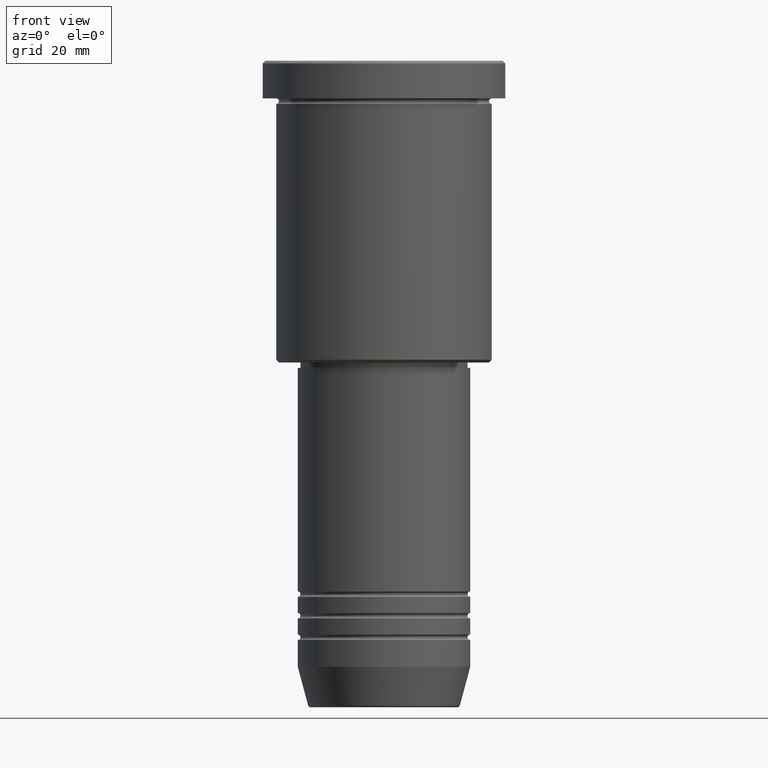
[diagram: clean part render]
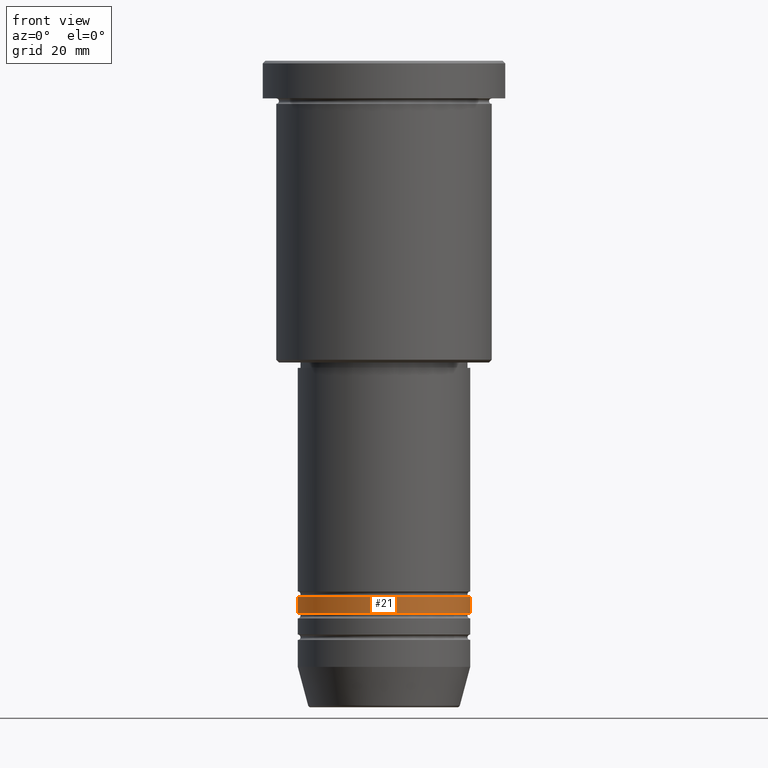
[diagram: same view with one face highlighted and labeled with its STEP entity id]
A machine part, front view. The second image highlights one B-rep face of the part: STEP entity #21.
In plain terms, the highlighted cylindrical surface (partial cylindrical patch) has radius 16 mm, axis along (-0, -0, 1).
Its self-contained STEP definition (entity closure, byte-faithful):
#18 = CIRCLE ( 'NONE', #134, 16.00000000000000355 ) ;
#21 = ADVANCED_FACE ( 'NONE', ( #814 ), #787, .T. ) ;
#24 = DIRECTION ( 'NONE',  ( 1.000000000000000000, 0.000000000000000000, 0.000000000000000000 ) ) ;
#28 = DIRECTION ( 'NONE',  ( 1.000000000000000000, 0.000000000000000000, 0.000000000000000000 ) ) ;
#36 = CARTESIAN_POINT ( 'NONE',  ( -16.00000000000000355, 1.959434878635765526E-15, -102.4999999999999858 ) ) ;
#73 = LINE ( 'NONE', #703, #522 ) ;
#99 = VERTEX_POINT ( 'NONE', #541 ) ;
#134 = AXIS2_PLACEMENT_3D ( 'NONE', #648, #748, #28 ) ;
#208 = VECTOR ( 'NONE', #306, 1000.000000000000000 ) ;
#280 = VERTEX_POINT ( 'NONE', #36 ) ;
#306 = DIRECTION ( 'NONE',  ( -0.000000000000000000, -0.000000000000000000, 1.000000000000000000 ) ) ;
#321 = CARTESIAN_POINT ( 'NONE',  ( 16.00000000000000355, 0.000000000000000000, -102.4999999999999858 ) ) ;
#344 = VERTEX_POINT ( 'NONE', #1130 ) ;
#356 = CARTESIAN_POINT ( 'NONE',  ( 0.000000000000000000, 0.000000000000000000, 0.000000000000000000 ) ) ;
#415 = EDGE_CURVE ( 'NONE', #280, #99, #853, .T. ) ;
#458 = AXIS2_PLACEMENT_3D ( 'NONE', #356, #974, #1080 ) ;
#468 = EDGE_CURVE ( 'NONE', #99, #344, #1181, .T. ) ;
#480 = DIRECTION ( 'NONE',  ( -0.000000000000000000, -0.000000000000000000, 1.000000000000000000 ) ) ;
#518 = VERTEX_POINT ( 'NONE', #321 ) ;
#522 = VECTOR ( 'NONE', #1070, 1000.000000000000000 ) ;
#541 = CARTESIAN_POINT ( 'NONE',  ( -16.00000000000000000, 1.959434878635765131E-15, -99.49999999999997158 ) ) ;
#618 = EDGE_LOOP ( 'NONE', ( #1007, #1139, #1157, #772 ) ) ;
#648 = CARTESIAN_POINT ( 'NONE',  ( 0.000000000000000000, 0.000000000000000000, -102.4999999999999858 ) ) ;
#663 = CARTESIAN_POINT ( 'NONE',  ( -16.00000000000000000, 1.959434878635765131E-15, 0.000000000000000000 ) ) ;
#703 = CARTESIAN_POINT ( 'NONE',  ( 16.00000000000000000, 0.000000000000000000, 0.000000000000000000 ) ) ;
#748 = DIRECTION ( 'NONE',  ( -0.000000000000000000, -0.000000000000000000, 1.000000000000000000 ) ) ;
#772 = ORIENTED_EDGE ( 'NONE', *, *, #468, .F. ) ;
#787 = CYLINDRICAL_SURFACE ( 'NONE', #458, 16.00000000000000000 ) ;
#814 = FACE_OUTER_BOUND ( 'NONE', #618, .T. ) ;
#853 = LINE ( 'NONE', #663, #208 ) ;
#866 = AXIS2_PLACEMENT_3D ( 'NONE', #931, #480, #24 ) ;
#927 = EDGE_CURVE ( 'NONE', #280, #518, #18, .T. ) ;
#931 = CARTESIAN_POINT ( 'NONE',  ( 0.000000000000000000, 0.000000000000000000, -99.49999999999997158 ) ) ;
#974 = DIRECTION ( 'NONE',  ( -0.000000000000000000, -0.000000000000000000, 1.000000000000000000 ) ) ;
#1007 = ORIENTED_EDGE ( 'NONE', *, *, #415, .F. ) ;
#1070 = DIRECTION ( 'NONE',  ( -0.000000000000000000, -0.000000000000000000, 1.000000000000000000 ) ) ;
#1080 = DIRECTION ( 'NONE',  ( 1.000000000000000000, 0.000000000000000000, 0.000000000000000000 ) ) ;
#1130 = CARTESIAN_POINT ( 'NONE',  ( 16.00000000000000000, 0.000000000000000000, -99.49999999999997158 ) ) ;
#1139 = ORIENTED_EDGE ( 'NONE', *, *, #927, .T. ) ;
#1157 = ORIENTED_EDGE ( 'NONE', *, *, #1173, .T. ) ;
#1173 = EDGE_CURVE ( 'NONE', #518, #344, #73, .T. ) ;
#1181 = CIRCLE ( 'NONE', #866, 16.00000000000000000 ) ;